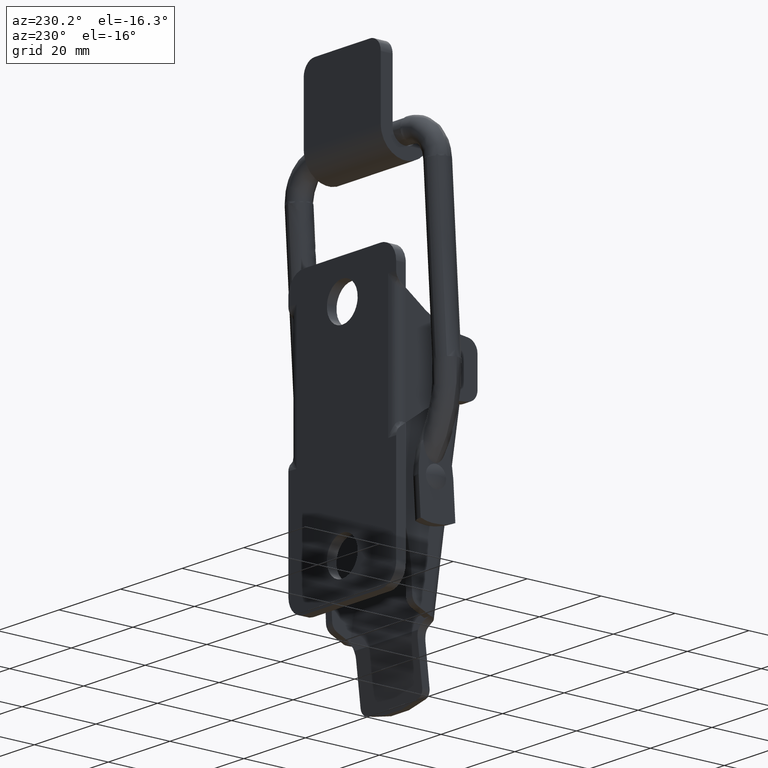
[diagram: clean part render]
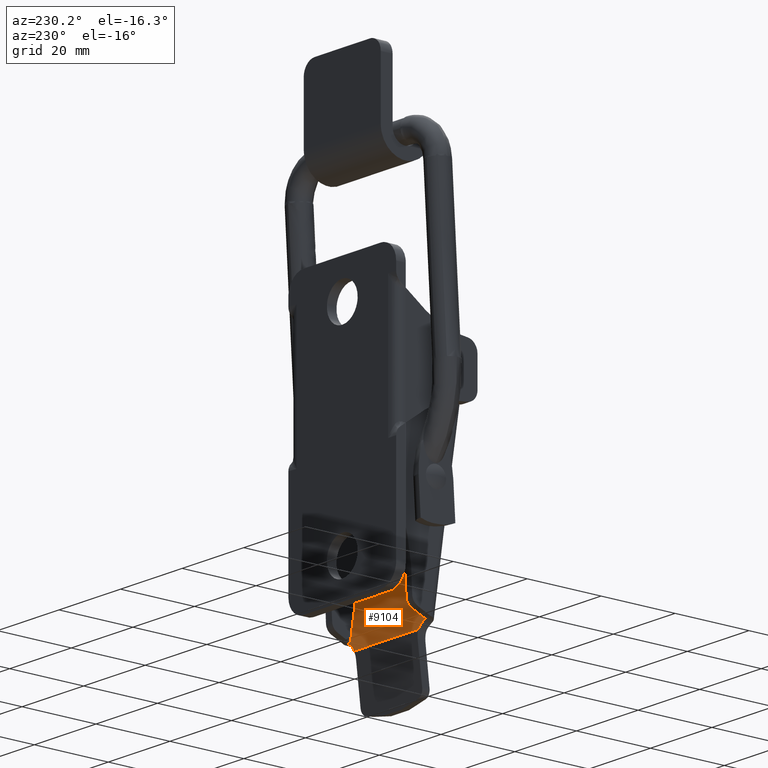
[diagram: same view with one face highlighted and labeled with its STEP entity id]
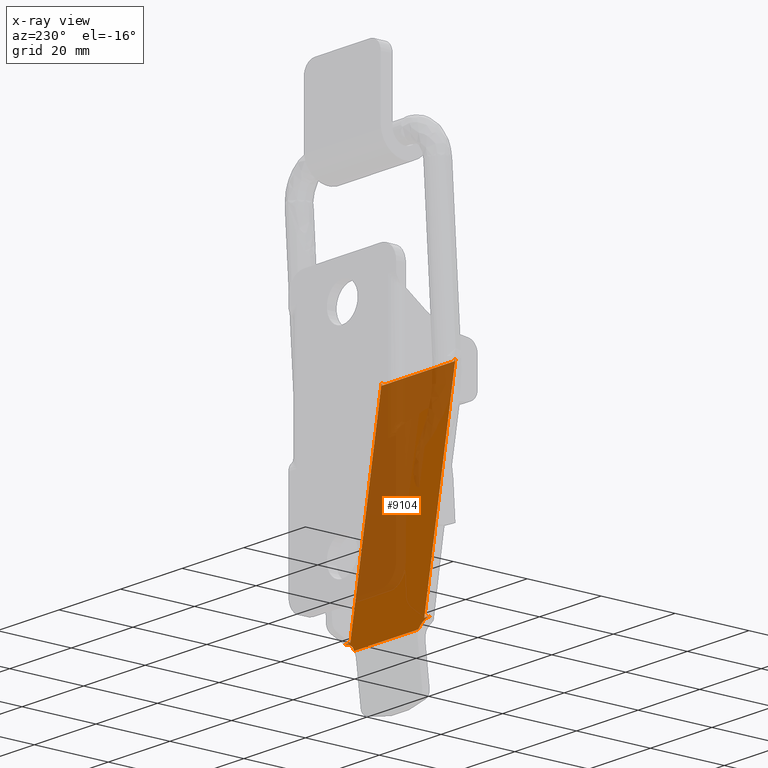
[diagram: x-ray of the same camera — body ghosted, the highlighted face saturated]
A machine part, auxiliary view. The second image highlights one B-rep face of the part: STEP entity #9104.
The next image is the same camera in x-ray: the body ghosted, the highlighted face saturated — about 59% of this face is hidden behind the body in this view.
In plain terms, the highlighted face is a freeform B-spline surface patch.
Its self-contained STEP definition (entity closure, byte-faithful):
#6939=CARTESIAN_POINT('',(-13.299999999999759,14.0,-103.934133463108000));
#6940=VERTEX_POINT('',#6939);
#6970=CARTESIAN_POINT('',(-13.300000000000001,10.422980113761300,-106.143901988283200));
#6971=VERTEX_POINT('',#6970);
#6972=CARTESIAN_POINT('',(-13.300000000000001,10.422980113761360,-106.143901988283200));
#6973=CARTESIAN_POINT('',(-13.299999999999994,11.528927883597683,-103.934133463108000));
#6974=CARTESIAN_POINT('',(-13.300000000000001,14.0,-103.934133463108000));
#6982=(BOUNDED_CURVE()B_SPLINE_CURVE(2,(#6972,#6973,#6974),.UNSPECIFIED.,.F.,.U.)CURVE()GEOMETRIC_REPRESENTATION_ITEM()QUASI_UNIFORM_CURVE()RATIONAL_B_SPLINE_CURVE((1.0,0.850751981692137,1.0))REPRESENTATION_ITEM(''));
#6983=EDGE_CURVE('',#6971,#6940,#6982,.T.);
#7009=CARTESIAN_POINT('',(-13.300000000000001,-10.422980113761300,-106.143901988283200));
#7010=VERTEX_POINT('',#7009);
#7020=CARTESIAN_POINT('',(-13.300000000000001,-13.999996023572301,-103.934133463108000));
#7021=VERTEX_POINT('',#7020);
#7022=CARTESIAN_POINT('',(-13.300000000000001,-13.999996023572301,-103.934133463108000));
#7023=CARTESIAN_POINT('',(-13.300000000000001,-11.528926654160854,-103.934135919617160));
#7024=CARTESIAN_POINT('',(-13.300000000000001,-10.422980113761360,-106.143901988283200));
#7032=(BOUNDED_CURVE()B_SPLINE_CURVE(2,(#7022,#7023,#7024),.UNSPECIFIED.,.F.,.U.)CURVE()GEOMETRIC_REPRESENTATION_ITEM()QUASI_UNIFORM_CURVE()RATIONAL_B_SPLINE_CURVE((1.0,0.850752242927115,1.0))REPRESENTATION_ITEM(''));
#7033=EDGE_CURVE('',#7021,#7010,#7032,.T.);
#7754=CARTESIAN_POINT('',(-13.300000000000001,-10.422980113761300,-106.143901988283200));
#7755=CARTESIAN_POINT('',(-13.300000000000001,10.422980113761300,-106.143901988283200));
#7756=QUASI_UNIFORM_CURVE('',1,(#7754,#7755),.UNSPECIFIED.,.F.,.U.);
#7757=EDGE_CURVE('',#7010,#6971,#7756,.T.);
#8328=CARTESIAN_POINT('',(-13.300000000000001,-11.750000000000000,-45.700000000000003));
#8329=VERTEX_POINT('',#8328);
#8335=CARTESIAN_POINT('',(-13.300000000000001,-11.750000000000000,-46.142857142857103));
#8336=VERTEX_POINT('',#8335);
#8337=CARTESIAN_POINT('',(-13.300000000000001,-11.750000000000000,-45.700000000000003));
#8338=CARTESIAN_POINT('',(-13.300000000000001,-11.750000000000000,-46.142857142857103));
#8339=QUASI_UNIFORM_CURVE('',1,(#8337,#8338),.UNSPECIFIED.,.F.,.U.);
#8340=EDGE_CURVE('',#8329,#8336,#8339,.T.);
#8484=CARTESIAN_POINT('',(-13.300000000000001,11.750000000000000,-46.142857142857103));
#8485=VERTEX_POINT('',#8484);
#8491=CARTESIAN_POINT('',(-13.300000000000001,11.750000000000000,-45.700000000000003));
#8492=VERTEX_POINT('',#8491);
#8493=CARTESIAN_POINT('',(-13.300000000000001,11.750000000000000,-45.700000000000003));
#8494=CARTESIAN_POINT('',(-13.300000000000001,11.750000000000000,-46.142857142857103));
#8495=QUASI_UNIFORM_CURVE('',1,(#8493,#8494),.UNSPECIFIED.,.F.,.U.);
#8496=EDGE_CURVE('',#8492,#8485,#8495,.T.);
#8601=CARTESIAN_POINT('',(-13.300000000000001,11.750000000000000,-46.142857142857103));
#8602=CARTESIAN_POINT('',(-13.300000000000001,-11.750000000000000,-46.142857142857103));
#8603=QUASI_UNIFORM_CURVE('',1,(#8601,#8602),.UNSPECIFIED.,.F.,.U.);
#8604=EDGE_CURVE('',#8485,#8336,#8603,.T.);
#8657=CARTESIAN_POINT('',(-13.300000000000001,-12.0,-103.934133463108000));
#8658=VERTEX_POINT('',#8657);
#8664=CARTESIAN_POINT('',(-13.300000000000001,-12.0,-45.700000000000003));
#8665=VERTEX_POINT('',#8664);
#8666=CARTESIAN_POINT('',(-13.300000000000001,-12.0,-45.700000000000003));
#8667=CARTESIAN_POINT('',(-13.300000000000001,-12.0,-103.934133463108000));
#8668=QUASI_UNIFORM_CURVE('',1,(#8666,#8667),.UNSPECIFIED.,.F.,.U.);
#8669=EDGE_CURVE('',#8665,#8658,#8668,.T.);
#8710=CARTESIAN_POINT('',(-13.300000000000001,12.0,-103.934133463108000));
#8711=VERTEX_POINT('',#8710);
#8747=CARTESIAN_POINT('',(-13.300000000000001,12.0,-45.700000000000003));
#8748=VERTEX_POINT('',#8747);
#8754=CARTESIAN_POINT('',(-13.300000000000001,12.0,-45.700000000000003));
#8755=CARTESIAN_POINT('',(-13.300000000000001,12.0,-103.934133463108000));
#8756=QUASI_UNIFORM_CURVE('',1,(#8754,#8755),.UNSPECIFIED.,.F.,.U.);
#8757=EDGE_CURVE('',#8748,#8711,#8756,.T.);
#8930=CARTESIAN_POINT('',(-13.300000000000001,-12.0,-103.934133463108000));
#8931=CARTESIAN_POINT('',(-13.300000000000001,-13.999996023572301,-103.934133463108000));
#8932=QUASI_UNIFORM_CURVE('',1,(#8930,#8931),.UNSPECIFIED.,.F.,.U.);
#8933=EDGE_CURVE('',#8658,#7021,#8932,.T.);
#9019=CARTESIAN_POINT('',(-13.300000000000001,12.0,-103.934133463108000));
#9020=CARTESIAN_POINT('',(-13.299999999999759,14.0,-103.934133463108000));
#9021=QUASI_UNIFORM_CURVE('',1,(#9019,#9020),.UNSPECIFIED.,.F.,.U.);
#9022=EDGE_CURVE('',#8711,#6940,#9021,.T.);
#9045=CARTESIAN_POINT('',(-13.300000000000001,-11.750000000000000,-45.700000000000003));
#9046=CARTESIAN_POINT('',(-13.300000000000001,-12.0,-45.700000000000003));
#9047=QUASI_UNIFORM_CURVE('',1,(#9045,#9046),.UNSPECIFIED.,.F.,.U.);
#9048=EDGE_CURVE('',#8329,#8665,#9047,.T.);
#9081=CARTESIAN_POINT('',(-13.300000000000001,-15.398596033524241,-42.680827564293281));
#9082=CARTESIAN_POINT('',(-13.300000000000001,-15.398596033524241,-109.163080908917100));
#9083=CARTESIAN_POINT('',(-13.300000000000001,15.398600510630891,-42.680827564293288));
#9084=CARTESIAN_POINT('',(-13.300000000000001,15.398600510630891,-109.163080908917100));
#9085=B_SPLINE_SURFACE_WITH_KNOTS('',1,1,((#9081,#9083),(#9082,#9084)),.UNSPECIFIED.,.F.,.F.,.U.,(2,2),(2,2),(0.0,66.482253344623786),(0.0,30.797196544155131),.UNSPECIFIED.);
#9086=ORIENTED_EDGE('',*,*,#8669,.T.);
#9087=ORIENTED_EDGE('',*,*,#8933,.T.);
#9088=ORIENTED_EDGE('',*,*,#7033,.T.);
#9089=ORIENTED_EDGE('',*,*,#7757,.T.);
#9090=ORIENTED_EDGE('',*,*,#6983,.T.);
#9091=ORIENTED_EDGE('',*,*,#9022,.F.);
#9092=ORIENTED_EDGE('',*,*,#8757,.F.);
#9093=CARTESIAN_POINT('',(-13.300000000000001,12.0,-45.700000000000003));
#9094=CARTESIAN_POINT('',(-13.300000000000001,11.750000000000000,-45.700000000000003));
#9095=QUASI_UNIFORM_CURVE('',1,(#9093,#9094),.UNSPECIFIED.,.F.,.U.);
#9096=EDGE_CURVE('',#8748,#8492,#9095,.T.);
#9097=ORIENTED_EDGE('',*,*,#9096,.T.);
#9098=ORIENTED_EDGE('',*,*,#8496,.T.);
#9099=ORIENTED_EDGE('',*,*,#8604,.T.);
#9100=ORIENTED_EDGE('',*,*,#8340,.F.);
#9101=ORIENTED_EDGE('',*,*,#9048,.T.);
#9102=EDGE_LOOP('',(#9086,#9087,#9088,#9089,#9090,#9091,#9092,#9097,#9098,#9099,#9100,#9101));
#9103=FACE_OUTER_BOUND('',#9102,.T.);
#9104=ADVANCED_FACE('',(#9103),#9085,.T.);